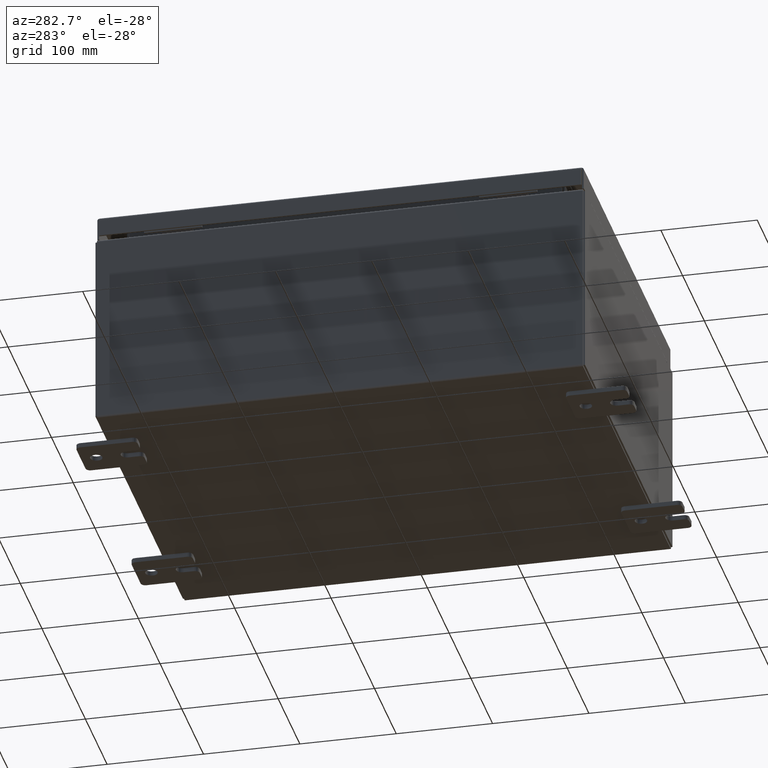
[diagram: clean part render]
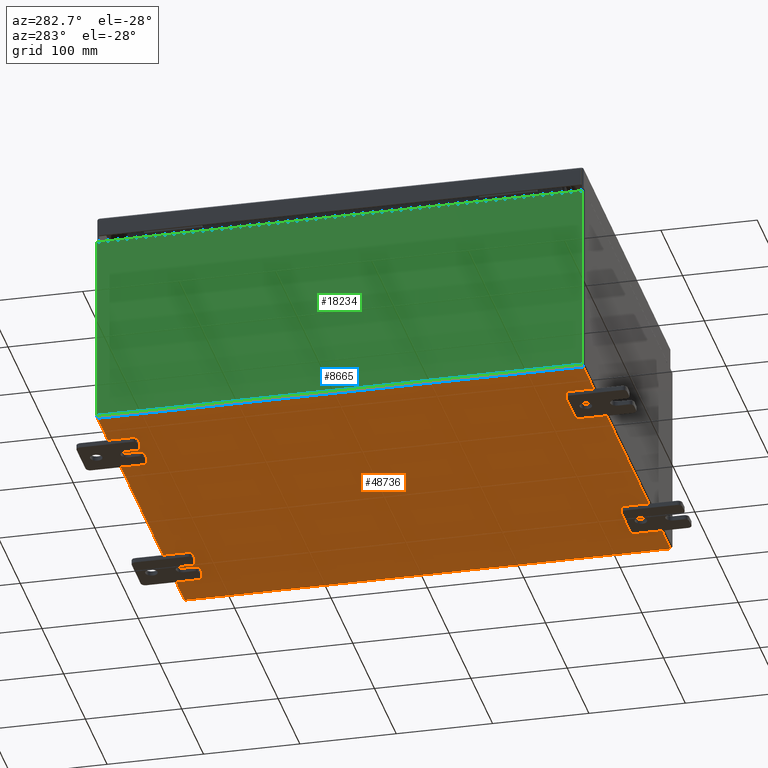
[diagram: same view with three faces highlighted in distinct colors, each labeled with its STEP entity id]
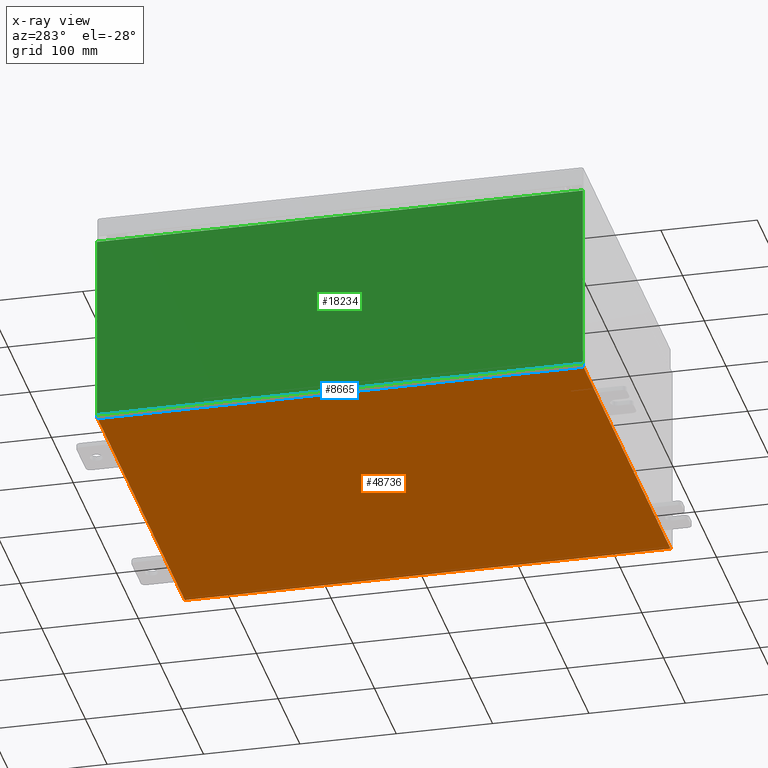
[diagram: x-ray of the same camera — body ghosted, the three highlighted faces saturated]
A machine part, auxiliary view with three faces highlighted in distinct colors.
The next image is the same camera in x-ray (body ghosted, the three faces saturated) — at least one of them is partly hidden behind the body in this view.
Their STEP definitions:

[orange] entity #48736 — the highlighted planar face has unit normal (0, 0, -1).
#47 = CARTESIAN_POINT ( 'NONE',  ( -7.999999999999997300, -9.925300000000001800, -0.07470000000000000300 ) ) ;
#551 = EDGE_CURVE ( 'NONE', #36187, #60284, #49716, .T. ) ;
#2612 = VECTOR ( 'NONE', #4727, 39.37007874015748100 ) ;
#2839 = EDGE_CURVE ( 'NONE', #18025, #60284, #54461, .T. ) ;
#4727 = DIRECTION ( 'NONE',  ( 1.000000000000000000, 0.0000000000000000000, 0.0000000000000000000 ) ) ;
#8182 = LINE ( 'NONE', #30510, #56962 ) ;
#8651 = VECTOR ( 'NONE', #50834, 39.37007874015748100 ) ;
#9004 = CARTESIAN_POINT ( 'NONE',  ( 7.912300000000001900, 9.925299999999996500, -0.07469999999999994700 ) ) ;
#9805 = DIRECTION ( 'NONE',  ( -0.0000000000000000000, -1.000000000000000000, -0.0000000000000000000 ) ) ;
#10583 = DIRECTION ( 'NONE',  ( 0.0000000000000000000, 0.0000000000000000000, -1.000000000000000000 ) ) ;
#13878 = VECTOR ( 'NONE', #9805, 39.37007874015748100 ) ;
#16395 = EDGE_LOOP ( 'NONE', ( #51096, #54298, #33088, #50265 ) ) ;
#16468 = VERTEX_POINT ( 'NONE', #45065 ) ;
#18025 = VERTEX_POINT ( 'NONE', #29622 ) ;
#25005 = PLANE ( 'NONE',  #59645 ) ;
#29622 = CARTESIAN_POINT ( 'NONE',  ( -7.912299999999997400, -9.925300000000000000, -0.07469999999999994700 ) ) ;
#30510 = CARTESIAN_POINT ( 'NONE',  ( -7.999999999999997300, 9.925299999999998200, -0.07470000000000000300 ) ) ;
#33088 = ORIENTED_EDGE ( 'NONE', *, *, #44946, .F. ) ;
#34564 = LINE ( 'NONE', #55537, #8651 ) ;
#36187 = VERTEX_POINT ( 'NONE', #9004 ) ;
#38975 = CARTESIAN_POINT ( 'NONE',  ( 7.912300000000001900, 9.925299999999998200, -0.07469999999999994700 ) ) ;
#39757 = CARTESIAN_POINT ( 'NONE',  ( 0.0000000000000000000, 0.0000000000000000000, -0.07470000000000000300 ) ) ;
#42356 = FACE_OUTER_BOUND ( 'NONE', #16395, .T. ) ;
#44643 = DIRECTION ( 'NONE',  ( -1.000000000000000000, 0.0000000000000000000, -0.0000000000000000000 ) ) ;
#44946 = EDGE_CURVE ( 'NONE', #36187, #16468, #8182, .T. ) ;
#45065 = CARTESIAN_POINT ( 'NONE',  ( -7.912299999999997400, 9.925299999999998200, -0.07470000000000000300 ) ) ;
#48736 = ADVANCED_FACE ( 'NONE', ( #42356 ), #25005, .T. ) ;
#49716 = LINE ( 'NONE', #38975, #13878 ) ;
#50265 = ORIENTED_EDGE ( 'NONE', *, *, #551, .T. ) ;
#50834 = DIRECTION ( 'NONE',  ( -0.0000000000000000000, 1.000000000000000000, -0.0000000000000000000 ) ) ;
#51096 = ORIENTED_EDGE ( 'NONE', *, *, #2839, .F. ) ;
#51912 = EDGE_CURVE ( 'NONE', #18025, #16468, #34564, .T. ) ;
#54298 = ORIENTED_EDGE ( 'NONE', *, *, #51912, .T. ) ;
#54461 = LINE ( 'NONE', #47, #2612 ) ;
#55537 = CARTESIAN_POINT ( 'NONE',  ( -7.912299999999997400, -9.925300000000001800, -0.07469999999999994700 ) ) ;
#56962 = VECTOR ( 'NONE', #59713, 39.37007874015748100 ) ;
#59160 = CARTESIAN_POINT ( 'NONE',  ( 7.912300000000001900, -9.925300000000001800, -0.07470000000000000300 ) ) ;
#59645 = AXIS2_PLACEMENT_3D ( 'NONE', #39757, #10583, #44643 ) ;
#59713 = DIRECTION ( 'NONE',  ( -1.000000000000000000, -0.0000000000000000000, -0.0000000000000000000 ) ) ;
#60284 = VERTEX_POINT ( 'NONE', #59160 ) ;

[blue] entity #8665 — the highlighted cylindrical surface (edge-blend (fillet) strip) has radius 2.2276 mm, axis along (0, -1, 0).
#4470 = CARTESIAN_POINT ( 'NONE',  ( -7.912299999999997400, -9.925300000000000000, 0.01300000000000015200 ) ) ;
#4612 = LINE ( 'NONE', #30308, #54913 ) ;
#4802 = ORIENTED_EDGE ( 'NONE', *, *, #51427, .F. ) ;
#4842 = AXIS2_PLACEMENT_3D ( 'NONE', #53618, #19729, #48932 ) ;
#7460 = CIRCLE ( 'NONE', #49750, 0.08770000000000009700 ) ;
#8651 = VECTOR ( 'NONE', #50834, 39.37007874015748100 ) ;
#8665 = ADVANCED_FACE ( 'NONE', ( #16059 ), #14506, .T. ) ;
#9366 = DIRECTION ( 'NONE',  ( 0.0000000000000000000, 0.0000000000000000000, -1.000000000000000000 ) ) ;
#10953 = DIRECTION ( 'NONE',  ( -0.0000000000000000000, 1.000000000000000000, -0.0000000000000000000 ) ) ;
#11995 = ORIENTED_EDGE ( 'NONE', *, *, #45875, .F. ) ;
#14506 = CYLINDRICAL_SURFACE ( 'NONE', #4842, 0.08770000000000026400 ) ;
#16059 = FACE_OUTER_BOUND ( 'NONE', #20647, .T. ) ;
#16468 = VERTEX_POINT ( 'NONE', #45065 ) ;
#18025 = VERTEX_POINT ( 'NONE', #29622 ) ;
#19314 = VERTEX_POINT ( 'NONE', #40528 ) ;
#19729 = DIRECTION ( 'NONE',  ( 0.0000000000000000000, -1.000000000000000000, 0.0000000000000000000 ) ) ;
#20647 = EDGE_LOOP ( 'NONE', ( #42002, #4802, #33404, #11995 ) ) ;
#28483 = CARTESIAN_POINT ( 'NONE',  ( -7.912299999999997400, 9.925299999999998200, 0.01300000000000015200 ) ) ;
#29622 = CARTESIAN_POINT ( 'NONE',  ( -7.912299999999997400, -9.925300000000000000, -0.07469999999999994700 ) ) ;
#30308 = CARTESIAN_POINT ( 'NONE',  ( -7.999999999999997300, 9.925299999999998200, 0.01299999999999984700 ) ) ;
#33380 = DIRECTION ( 'NONE',  ( 0.0000000000000000000, 0.0000000000000000000, -1.000000000000000000 ) ) ;
#33404 = ORIENTED_EDGE ( 'NONE', *, *, #41249, .T. ) ;
#34564 = LINE ( 'NONE', #55537, #8651 ) ;
#36876 = CIRCLE ( 'NONE', #51975, 0.08770000000000009700 ) ;
#38541 = DIRECTION ( 'NONE',  ( 0.0000000000000000000, -1.000000000000000000, 0.0000000000000000000 ) ) ;
#40528 = CARTESIAN_POINT ( 'NONE',  ( -7.999999999999997300, 9.925299999999998200, 0.01299999999999984800 ) ) ;
#41249 = EDGE_CURVE ( 'NONE', #57072, #19314, #4612, .T. ) ;
#42002 = ORIENTED_EDGE ( 'NONE', *, *, #51912, .F. ) ;
#45065 = CARTESIAN_POINT ( 'NONE',  ( -7.912299999999997400, 9.925299999999998200, -0.07470000000000000300 ) ) ;
#45875 = EDGE_CURVE ( 'NONE', #16468, #19314, #7460, .T. ) ;
#46802 = CARTESIAN_POINT ( 'NONE',  ( -7.999999999999997300, -9.925300000000000000, 0.01299999999999984700 ) ) ;
#48932 = DIRECTION ( 'NONE',  ( -1.000000000000000000, 0.0000000000000000000, -3.455694262224952200E-015 ) ) ;
#49750 = AXIS2_PLACEMENT_3D ( 'NONE', #28483, #62568, #33380 ) ;
#50834 = DIRECTION ( 'NONE',  ( -0.0000000000000000000, 1.000000000000000000, -0.0000000000000000000 ) ) ;
#51427 = EDGE_CURVE ( 'NONE', #57072, #18025, #36876, .T. ) ;
#51912 = EDGE_CURVE ( 'NONE', #18025, #16468, #34564, .T. ) ;
#51975 = AXIS2_PLACEMENT_3D ( 'NONE', #4470, #38541, #9366 ) ;
#53618 = CARTESIAN_POINT ( 'NONE',  ( -7.912299999999997400, -9.925300000000001800, 0.01300000000000015200 ) ) ;
#54913 = VECTOR ( 'NONE', #10953, 39.37007874015748100 ) ;
#55537 = CARTESIAN_POINT ( 'NONE',  ( -7.912299999999997400, -9.925300000000001800, -0.07469999999999994700 ) ) ;
#57072 = VERTEX_POINT ( 'NONE', #46802 ) ;
#62568 = DIRECTION ( 'NONE',  ( -0.0000000000000000000, 1.000000000000000000, -0.0000000000000000000 ) ) ;

[green] entity #18234 — the highlighted planar face has unit normal (1, 0, 0).
#3198 = CARTESIAN_POINT ( 'NONE',  ( -7.999999999999997300, 0.0000000000000000000, -2.783678421777467300E-014 ) ) ;
#3229 = VECTOR ( 'NONE', #13553, 39.37007874015748100 ) ;
#3452 = CARTESIAN_POINT ( 'NONE',  ( -7.999999999999997300, 9.925299999999998200, -2.783678421777467300E-014 ) ) ;
#3867 = ORIENTED_EDGE ( 'NONE', *, *, #13664, .T. ) ;
#4612 = LINE ( 'NONE', #30308, #54913 ) ;
#5132 = EDGE_CURVE ( 'NONE', #35116, #9567, #42089, .T. ) ;
#8307 = DIRECTION ( 'NONE',  ( 1.000000000000000000, 0.0000000000000000000, 3.446996320220386900E-015 ) ) ;
#8311 = VECTOR ( 'NONE', #26108, 39.37007874015748100 ) ;
#8679 = CARTESIAN_POINT ( 'NONE',  ( -8.000000000000024900, -9.925299999999998200, 7.837599999999999200 ) ) ;
#9567 = VERTEX_POINT ( 'NONE', #52042 ) ;
#10885 = EDGE_LOOP ( 'NONE', ( #47001, #3867, #51078, #44434 ) ) ;
#10953 = DIRECTION ( 'NONE',  ( -0.0000000000000000000, 1.000000000000000000, -0.0000000000000000000 ) ) ;
#13240 = DIRECTION ( 'NONE',  ( 3.446996320220387700E-015, 0.0000000000000000000, -1.000000000000000000 ) ) ;
#13553 = DIRECTION ( 'NONE',  ( 0.0000000000000000000, 1.000000000000000000, 0.0000000000000000000 ) ) ;
#13664 = EDGE_CURVE ( 'NONE', #9567, #19314, #24110, .T. ) ;
#18234 = ADVANCED_FACE ( 'NONE', ( #54057 ), #37510, .F. ) ;
#19314 = VERTEX_POINT ( 'NONE', #40528 ) ;
#21238 = LINE ( 'NONE', #25888, #8311 ) ;
#24110 = LINE ( 'NONE', #3452, #59976 ) ;
#25888 = CARTESIAN_POINT ( 'NONE',  ( -7.999999999999997300, -9.925300000000001800, -2.783678421777467300E-014 ) ) ;
#26108 = DIRECTION ( 'NONE',  ( -3.446996320220387700E-015, 0.0000000000000000000, 1.000000000000000000 ) ) ;
#30308 = CARTESIAN_POINT ( 'NONE',  ( -7.999999999999997300, 9.925299999999998200, 0.01299999999999984700 ) ) ;
#35116 = VERTEX_POINT ( 'NONE', #45742 ) ;
#37510 = PLANE ( 'NONE',  #43936 ) ;
#40528 = CARTESIAN_POINT ( 'NONE',  ( -7.999999999999997300, 9.925299999999998200, 0.01299999999999984800 ) ) ;
#41249 = EDGE_CURVE ( 'NONE', #57072, #19314, #4612, .T. ) ;
#42089 = LINE ( 'NONE', #8679, #3229 ) ;
#42374 = DIRECTION ( 'NONE',  ( 3.446996320220386900E-015, 0.0000000000000000000, -1.000000000000000000 ) ) ;
#42811 = EDGE_CURVE ( 'NONE', #57072, #35116, #21238, .T. ) ;
#43936 = AXIS2_PLACEMENT_3D ( 'NONE', #3198, #8307, #42374 ) ;
#44434 = ORIENTED_EDGE ( 'NONE', *, *, #42811, .T. ) ;
#45742 = CARTESIAN_POINT ( 'NONE',  ( -8.000000000000024900, -9.925299999999996500, 7.837599999999999200 ) ) ;
#46802 = CARTESIAN_POINT ( 'NONE',  ( -7.999999999999997300, -9.925300000000000000, 0.01299999999999984700 ) ) ;
#47001 = ORIENTED_EDGE ( 'NONE', *, *, #5132, .T. ) ;
#51078 = ORIENTED_EDGE ( 'NONE', *, *, #41249, .F. ) ;
#52042 = CARTESIAN_POINT ( 'NONE',  ( -8.000000000000024900, 9.925299999999998200, 7.837599999999999200 ) ) ;
#54057 = FACE_OUTER_BOUND ( 'NONE', #10885, .T. ) ;
#54913 = VECTOR ( 'NONE', #10953, 39.37007874015748100 ) ;
#57072 = VERTEX_POINT ( 'NONE', #46802 ) ;
#59976 = VECTOR ( 'NONE', #13240, 39.37007874015748100 ) ;